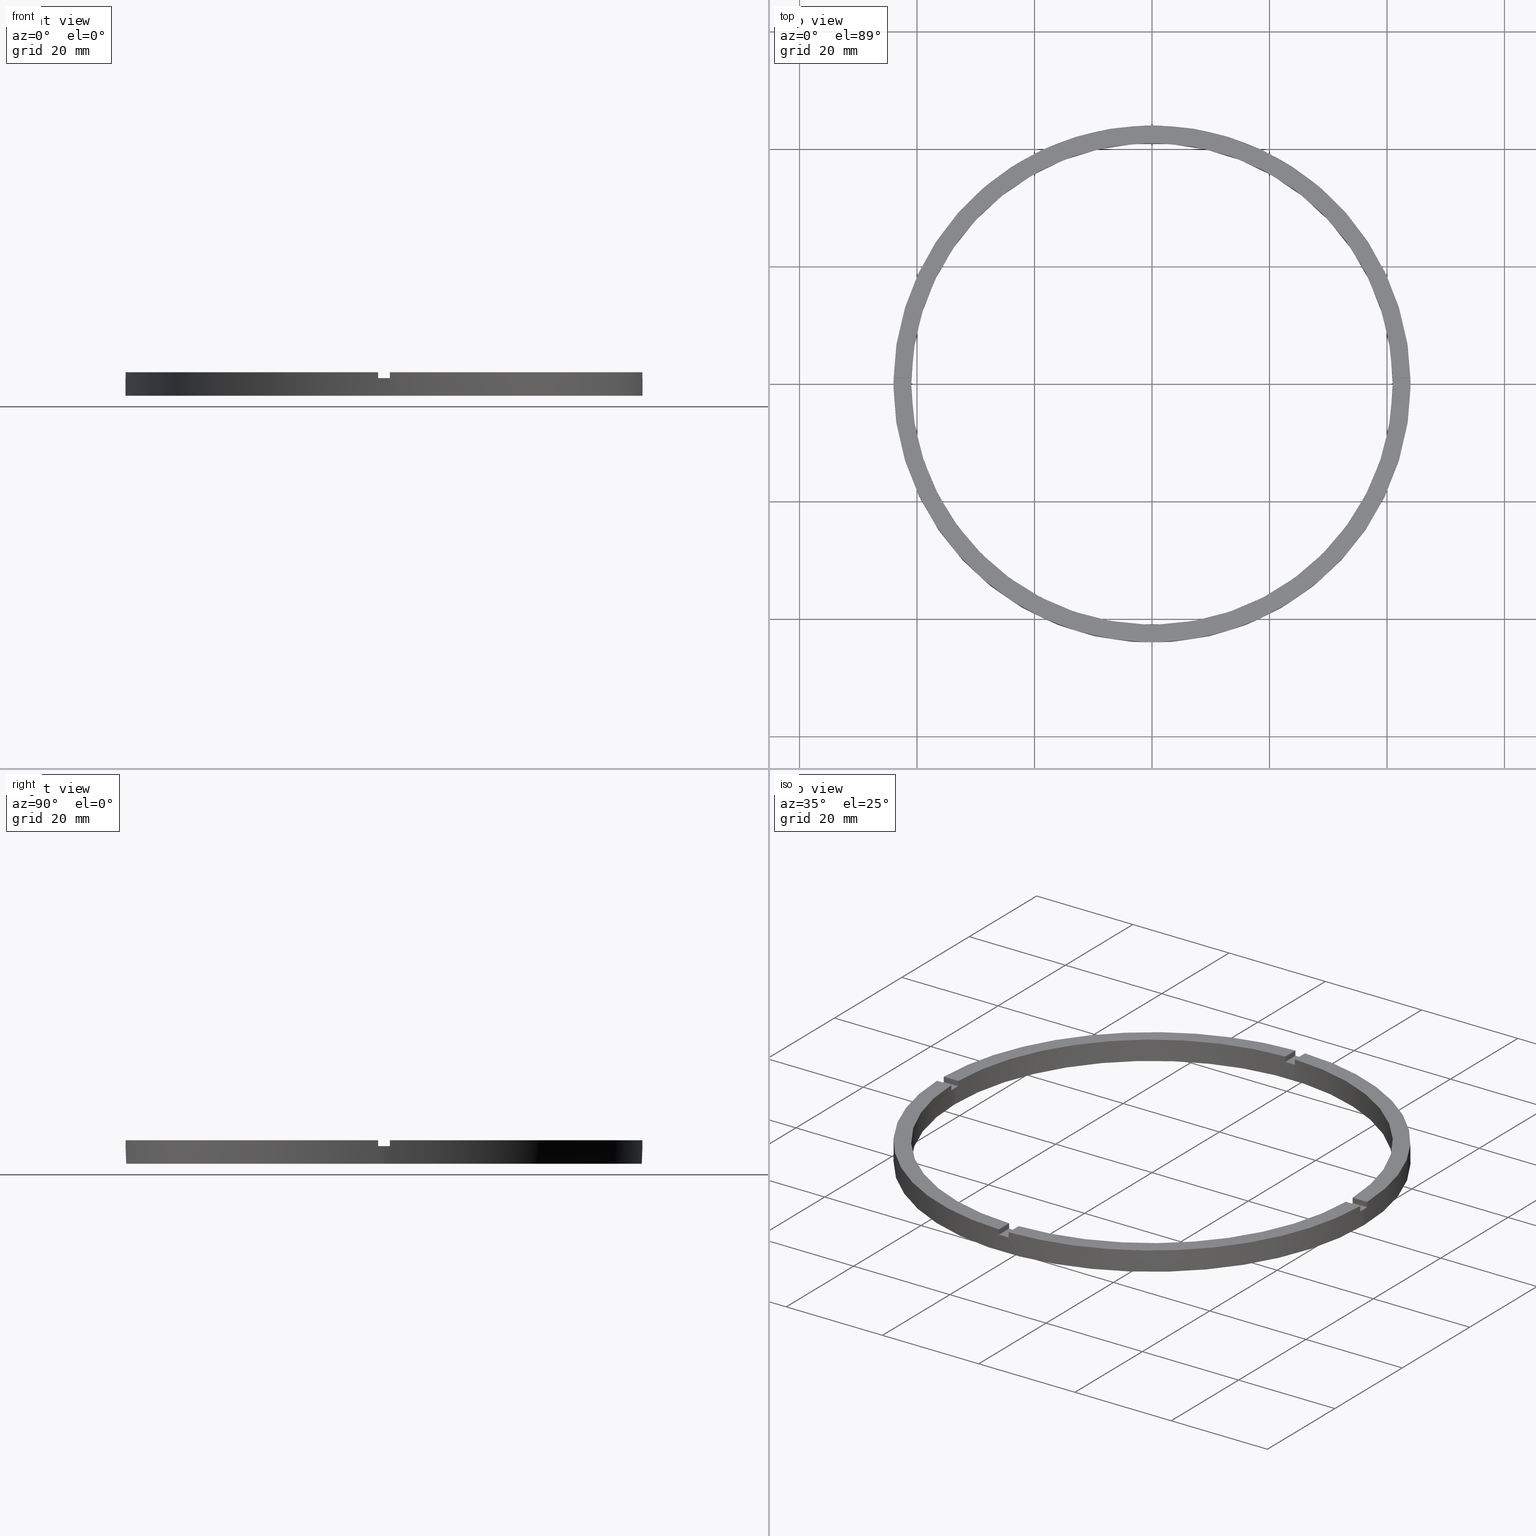
[diagram: canonical four-view strip — front | top / right | iso, engineering-drawing reading convention]
A machine part, canonical four-view strip (front | top / right | iso — engineering-drawing reading convention). The complete STEP part file that produces these views, byte-faithful:
ISO-10303-21;
HEADER;
FILE_DESCRIPTION (( 'STEP AP203' ),
    '1' );
FILE_NAME ('514181.step',
    '2024-12-26T02:45:28',
    ( 'MSI' ),
    ( '' ),
    'SwSTEP 2.0',
    'SolidWorks 2020',
    '' );
FILE_SCHEMA (( 'CONFIG_CONTROL_DESIGN' ));
ENDSEC;

DATA;
#1 = VERTEX_POINT ( 'NONE', #317 ) ;
#2 = ORIENTED_EDGE ( 'NONE', *, *, #251, .F. ) ;
#3 = ORIENTED_EDGE ( 'NONE', *, *, #658, .F. ) ;
#4 = ORIENTED_EDGE ( 'NONE', *, *, #277, .F. ) ;
#5 = ORIENTED_EDGE ( 'NONE', *, *, #682, .F. ) ;
#6 = ORIENTED_EDGE ( 'NONE', *, *, #703, .F. ) ;
#7 = VERTEX_POINT ( 'NONE', #632 ) ;
#8 = AXIS2_PLACEMENT_3D ( 'NONE', #494, #319, #689 ) ;
#9 = EDGE_CURVE ( 'NONE', #700, #595, #743, .T. ) ;
#10 = ORIENTED_EDGE ( 'NONE', *, *, #99, .F. ) ;
#11 = ADVANCED_FACE ( 'NONE', ( #219 ), #382, .F. ) ;
#12 = ORIENTED_EDGE ( 'NONE', *, *, #453, .T. ) ;
#13 = FACE_OUTER_BOUND ( 'NONE', #472, .T. ) ;
#14 = ORIENTED_EDGE ( 'NONE', *, *, #159, .F. ) ;
#15 = VERTEX_POINT ( 'NONE', #349 ) ;
#16 = VERTEX_POINT ( 'NONE', #74 ) ;
#17 = CIRCLE ( 'NONE', #165, 44.00000000000000000 ) ;
#18 = ORIENTED_EDGE ( 'NONE', *, *, #30, .T. ) ;
#19 = AXIS2_PLACEMENT_3D ( 'NONE', #225, #294, #704 ) ;
#20 = LINE ( 'NONE', #656, #583 ) ;
#21 = FACE_OUTER_BOUND ( 'NONE', #457, .T. ) ;
#22 = PLANE ( 'NONE',  #391 ) ;
#23 = LINE ( 'NONE', #314, #25 ) ;
#24 = ORIENTED_EDGE ( 'NONE', *, *, #132, .F. ) ;
#25 = VECTOR ( 'NONE', #423, 1000.000000000000000 ) ;
#26 = FACE_OUTER_BOUND ( 'NONE', #206, .T. ) ;
#27 = ORIENTED_EDGE ( 'NONE', *, *, #517, .F. ) ;
#28 = CIRCLE ( 'NONE', #441, 44.00000000000000000 ) ;
#29 = VECTOR ( 'NONE', #464, 1000.000000000000000 ) ;
#30 = EDGE_CURVE ( 'NONE', #595, #267, #221, .T. ) ;
#31 = VECTOR ( 'NONE', #140, 1000.000000000000000 ) ;
#32 = CARTESIAN_POINT ( 'NONE',  ( 43.98863489584553577, -1.000000000000156319, 4.000000000000000000 ) ) ;
#33 = VECTOR ( 'NONE', #352, 1000.000000000000000 ) ;
#34 = LINE ( 'NONE', #368, #576 ) ;
#35 = AXIS2_PLACEMENT_3D ( 'NONE', #170, #696, #534 ) ;
#36 = DIRECTION ( 'NONE',  ( 0.000000000000000000, 0.000000000000000000, 1.000000000000000000 ) ) ;
#37 = DIRECTION ( 'NONE',  ( 1.000000000000000000, 1.951563910473907735E-16, -0.000000000000000000 ) ) ;
#38 = CIRCLE ( 'NONE', #85, 41.00000000000000000 ) ;
#39 = EDGE_LOOP ( 'NONE', ( #244, #499, #535, #256, #51, #198 ) ) ;
#40 = ORIENTED_EDGE ( 'NONE', *, *, #130, .T. ) ;
#41 = VERTEX_POINT ( 'NONE', #375 ) ;
#42 = LINE ( 'NONE', #746, #45 ) ;
#43 = VERTEX_POINT ( 'NONE', #612 ) ;
#44 = CIRCLE ( 'NONE', #19, 41.00000000000000000 ) ;
#45 = VECTOR ( 'NONE', #283, 1000.000000000000000 ) ;
#46 = ORIENTED_EDGE ( 'NONE', *, *, #697, .T. ) ;
#47 = DIRECTION ( 'NONE',  ( -1.000000000000000000, -6.505213034913025371E-17, 0.000000000000000000 ) ) ;
#48 = EDGE_LOOP ( 'NONE', ( #729, #555, #347, #286, #550, #602 ) ) ;
#49 = FACE_OUTER_BOUND ( 'NONE', #209, .T. ) ;
#50 = DIRECTION ( 'NONE',  ( 1.000000000000000000, 0.000000000000000000, 0.000000000000000000 ) ) ;
#51 = ORIENTED_EDGE ( 'NONE', *, *, #437, .F. ) ;
#52 = VERTEX_POINT ( 'NONE', #169 ) ;
#53 = EDGE_CURVE ( 'NONE', #266, #757, #217, .T. ) ;
#54 = CIRCLE ( 'NONE', #186, 44.00000000000000000 ) ;
#55 = FACE_OUTER_BOUND ( 'NONE', #278, .T. ) ;
#56 = EDGE_CURVE ( 'NONE', #700, #518, #739, .T. ) ;
#57 = CARTESIAN_POINT ( 'NONE',  ( 44.00000000000000000, 5.388445916248353619E-15, 0.000000000000000000 ) ) ;
#58 = VECTOR ( 'NONE', #260, 1000.000000000000000 ) ;
#59 = DIRECTION ( 'NONE',  ( 0.000000000000000000, 0.000000000000000000, 1.000000000000000000 ) ) ;
#60 = CARTESIAN_POINT ( 'NONE',  ( 41.00000000000000000, 5.021051876504148963E-15, 4.000000000000000000 ) ) ;
#61 = CARTESIAN_POINT ( 'NONE',  ( 40.98780306383839189, -1.000000000000156541, 4.000000000000000000 ) ) ;
#62 = CIRCLE ( 'NONE', #318, 44.00000000000000000 ) ;
#63 = CIRCLE ( 'NONE', #227, 44.00000000000000000 ) ;
#64 = LINE ( 'NONE', #627, #340 ) ;
#65 = ORIENTED_EDGE ( 'NONE', *, *, #351, .T. ) ;
#66 = EDGE_LOOP ( 'NONE', ( #734, #76, #470, #10 ) ) ;
#67 = VECTOR ( 'NONE', #134, 1000.000000000000000 ) ;
#68 = DIRECTION ( 'NONE',  ( 0.000000000000000000, 0.000000000000000000, 1.000000000000000000 ) ) ;
#69 = EDGE_LOOP ( 'NONE', ( #515, #245, #224, #265, #742, #254, #755, #485, #276, #18, #540, #288 ) ) ;
#70 = FACE_OUTER_BOUND ( 'NONE', #270, .T. ) ;
#71 = DIRECTION ( 'NONE',  ( 0.000000000000000000, 0.000000000000000000, 1.000000000000000000 ) ) ;
#72 = CARTESIAN_POINT ( 'NONE',  ( 0.000000000000000000, 0.000000000000000000, 4.000000000000000000 ) ) ;
#73 = LINE ( 'NONE', #60, #320 ) ;
#74 = CARTESIAN_POINT ( 'NONE',  ( 40.98780306383840610, 0.9999999999998434586, 4.000000000000000000 ) ) ;
#75 = AXIS2_PLACEMENT_3D ( 'NONE', #89, #81, #546 ) ;
#76 = ORIENTED_EDGE ( 'NONE', *, *, #344, .T. ) ;
#77 = CIRCLE ( 'NONE', #465, 44.00000000000000000 ) ;
#78 = DIRECTION ( 'NONE',  ( 1.000000000000000000, 0.000000000000000000, 0.000000000000000000 ) ) ;
#79 = CARTESIAN_POINT ( 'NONE',  ( 0.000000000000000000, 0.000000000000000000, 4.000000000000000000 ) ) ;
#80 = CIRCLE ( 'NONE', #643, 41.00000000000000000 ) ;
#81 = DIRECTION ( 'NONE',  ( -1.000000000000000000, -1.301042606982605074E-16, 0.000000000000000000 ) ) ;
#82 = DIRECTION ( 'NONE',  ( 1.000000000000000000, 0.000000000000000000, 0.000000000000000000 ) ) ;
#83 = CYLINDRICAL_SURFACE ( 'NONE', #691, 44.00000000000000000 ) ;
#84 = CIRCLE ( 'NONE', #416, 41.00000000000000000 ) ;
#85 = AXIS2_PLACEMENT_3D ( 'NONE', #363, #679, #82 ) ;
#86 = DIRECTION ( 'NONE',  ( 1.000000000000000000, 0.000000000000000000, 0.000000000000000000 ) ) ;
#87 = DIRECTION ( 'NONE',  ( 1.000000000000000000, -0.000000000000000000, 0.000000000000000000 ) ) ;
#88 = FACE_OUTER_BOUND ( 'NONE', #768, .T. ) ;
#89 = CARTESIAN_POINT ( 'NONE',  ( -1.000000000000159650, -34.00000000000017764, 3.000000000000000000 ) ) ;
#90 = CARTESIAN_POINT ( 'NONE',  ( 43.98863489584554287, 0.9999999999998436806, 3.000000000000000000 ) ) ;
#91 = EDGE_CURVE ( 'NONE', #445, #757, #282, .T. ) ;
#92 = LINE ( 'NONE', #463, #322 ) ;
#93 = ORIENTED_EDGE ( 'NONE', *, *, #9, .F. ) ;
#94 = ORIENTED_EDGE ( 'NONE', *, *, #548, .T. ) ;
#95 = CARTESIAN_POINT ( 'NONE',  ( -1.000000000000158540, -40.98780306383839189, 4.000000000000000000 ) ) ;
#96 = ADVANCED_FACE ( 'NONE', ( #26, #579 ), #458, .F. ) ;
#97 = ORIENTED_EDGE ( 'NONE', *, *, #498, .F. ) ;
#98 = ORIENTED_EDGE ( 'NONE', *, *, #741, .F. ) ;
#99 = EDGE_CURVE ( 'NONE', #240, #513, #313, .T. ) ;
#100 = DIRECTION ( 'NONE',  ( 1.000000000000000000, 0.000000000000000000, -0.000000000000000000 ) ) ;
#101 = PERSON_AND_ORGANIZATION ( #663, #118 ) ;
#102 = VECTOR ( 'NONE', #634, 1000.000000000000000 ) ;
#103 = FACE_OUTER_BOUND ( 'NONE', #48, .T. ) ;
#104 = CC_DESIGN_PERSON_AND_ORGANIZATION_ASSIGNMENT ( #401, #188, ( #462 ) ) ;
#105 = EDGE_CURVE ( 'NONE', #1, #731, #20, .T. ) ;
#106 = CIRCLE ( 'NONE', #332, 44.00000000000000000 ) ;
#107 = VECTOR ( 'NONE', #705, 1000.000000000000000 ) ;
#108 = EDGE_CURVE ( 'NONE', #43, #271, #17, .T. ) ;
#109 = CIRCLE ( 'NONE', #163, 44.00000000000000000 ) ;
#110 = FACE_OUTER_BOUND ( 'NONE', #558, .T. ) ;
#111 = LINE ( 'NONE', #380, #619 ) ;
#112 = UNCERTAINTY_MEASURE_WITH_UNIT (LENGTH_MEASURE( 1.000000000000000082E-05 ), #758, 'distance_accuracy_value', 'NONE');
#113 = CARTESIAN_POINT ( 'NONE',  ( 33.99999999999998579, -1.000000000000156986, 3.000000000000000000 ) ) ;
#114 = LINE ( 'NONE', #655, #107 ) ;
#115 = AXIS2_PLACEMENT_3D ( 'NONE', #560, #695, #364 ) ;
#116 = LOCAL_TIME ( 10, 45, 28.00000000000000000, #370 ) ;
#117 = APPROVAL_DATE_TIME ( #383, #122 ) ;
#118 = ORGANIZATION ( 'δָ��', 'δָ��', '' ) ;
#119 = DIRECTION ( 'NONE',  ( 0.000000000000000000, 0.000000000000000000, 1.000000000000000000 ) ) ;
#120 = LINE ( 'NONE', #711, #639 ) ;
#121 = DIRECTION ( 'NONE',  ( 0.000000000000000000, 0.000000000000000000, 1.000000000000000000 ) ) ;
#122 = APPROVAL ( #421, 'δָ��' ) ;
#123 = EDGE_CURVE ( 'NONE', #343, #269, #305, .T. ) ;
#124 = LINE ( 'NONE', #231, #633 ) ;
#125 = DIRECTION ( 'NONE',  ( -0.000000000000000000, -0.000000000000000000, -1.000000000000000000 ) ) ;
#126 = CARTESIAN_POINT ( 'NONE',  ( -1.000000000000159650, -34.00000000000017764, 4.000000000000000000 ) ) ;
#127 = LOCAL_TIME ( 10, 45, 28.00000000000000000, #129 ) ;
#128 = DIRECTION ( 'NONE',  ( -1.000000000000000000, -6.505213034913025371E-17, -0.000000000000000000 ) ) ;
#129 = COORDINATED_UNIVERSAL_TIME_OFFSET ( 8, 0, .AHEAD. ) ;
#130 = EDGE_CURVE ( 'NONE', #519, #1, #42, .T. ) ;
#131 = CALENDAR_DATE ( 2024, 26, 12 ) ;
#132 = EDGE_CURVE ( 'NONE', #191, #539, #301, .T. ) ;
#133 = PERSON_AND_ORGANIZATION ( #663, #118 ) ;
#134 = DIRECTION ( 'NONE',  ( -1.000000000000000000, -6.505213034913025371E-17, -0.000000000000000000 ) ) ;
#135 = APPLICATION_CONTEXT ( 'configuration controlled 3d designs of mechanical parts and assemblies' ) ;
#136 = EDGE_CURVE ( 'NONE', #271, #537, #62, .T. ) ;
#137 = EDGE_CURVE ( 'NONE', #199, #255, #566, .T. ) ;
#138 = CARTESIAN_POINT ( 'NONE',  ( 0.000000000000000000, 0.000000000000000000, 0.000000000000000000 ) ) ;
#139 = PLANE ( 'NONE',  #373 ) ;
#140 = DIRECTION ( 'NONE',  ( -0.000000000000000000, -1.000000000000000000, -0.000000000000000000 ) ) ;
#141 = AXIS2_PLACEMENT_3D ( 'NONE', #216, #533, #671 ) ;
#142 = DATE_AND_TIME ( #675, #154 ) ;
#143 = COORDINATED_UNIVERSAL_TIME_OFFSET ( 8, 0, .AHEAD. ) ;
#144 = AXIS2_PLACEMENT_3D ( 'NONE', #669, #222, #538 ) ;
#145 = CALENDAR_DATE ( 2024, 26, 12 ) ;
#146 = DIRECTION ( 'NONE',  ( -1.951563910473907735E-16, 1.000000000000000000, 0.000000000000000000 ) ) ;
#147 = FACE_OUTER_BOUND ( 'NONE', #39, .T. ) ;
#148 = CARTESIAN_POINT ( 'NONE',  ( 43.98863489584554287, 0.9999999999998436806, 4.000000000000000000 ) ) ;
#149 = LINE ( 'NONE', #750, #166 ) ;
#150 = DATE_AND_TIME ( #145, #127 ) ;
#151 = COORDINATED_UNIVERSAL_TIME_OFFSET ( 8, 0, .AHEAD. ) ;
#152 = CARTESIAN_POINT ( 'NONE',  ( 0.000000000000000000, 0.000000000000000000, 4.000000000000000000 ) ) ;
#153 = EDGE_CURVE ( 'NONE', #240, #269, #549, .T. ) ;
#154 = LOCAL_TIME ( 10, 45, 28.00000000000000000, #406 ) ;
#155 = CARTESIAN_POINT ( 'NONE',  ( -34.00000000000018474, 0.9999999999999724665, 3.000000000000000000 ) ) ;
#156 = ADVANCED_FACE ( 'NONE', ( #21 ), #22, .F. ) ;
#157 = DIRECTION ( 'NONE',  ( 1.000000000000000000, 0.000000000000000000, 0.000000000000000000 ) ) ;
#158 = AXIS2_PLACEMENT_3D ( 'NONE', #719, #600, #212 ) ;
#159 = EDGE_CURVE ( 'NONE', #532, #43, #575, .T. ) ;
#160 = CARTESIAN_POINT ( 'NONE',  ( 0.000000000000000000, 0.000000000000000000, 3.000000000000000000 ) ) ;
#161 = DIRECTION ( 'NONE',  ( -0.000000000000000000, -0.000000000000000000, -1.000000000000000000 ) ) ;
#162 = DIRECTION ( 'NONE',  ( 0.000000000000000000, 0.000000000000000000, 1.000000000000000000 ) ) ;
#163 = AXIS2_PLACEMENT_3D ( 'NONE', #167, #678, #50 ) ;
#164 = CARTESIAN_POINT ( 'NONE',  ( 44.00000000000000000, 5.388445916248353619E-15, 3.000000000000000000 ) ) ;
#165 = AXIS2_PLACEMENT_3D ( 'NONE', #230, #617, #215 ) ;
#166 = VECTOR ( 'NONE', #128, 1000.000000000000000 ) ;
#167 = CARTESIAN_POINT ( 'NONE',  ( 0.000000000000000000, 0.000000000000000000, 4.000000000000000000 ) ) ;
#168 = CARTESIAN_POINT ( 'NONE',  ( 0.000000000000000000, 0.000000000000000000, 3.000000000000000000 ) ) ;
#169 = CARTESIAN_POINT ( 'NONE',  ( -40.98780306383839900, 0.9999999999999711342, 3.000000000000000000 ) ) ;
#170 = CARTESIAN_POINT ( 'NONE',  ( 0.000000000000000000, 0.000000000000000000, 4.000000000000000000 ) ) ;
#171 = DIRECTION ( 'NONE',  ( -0.000000000000000000, 0.000000000000000000, 1.000000000000000000 ) ) ;
#172 = EDGE_CURVE ( 'NONE', #16, #243, #554, .T. ) ;
#173 = DIRECTION ( 'NONE',  ( 0.000000000000000000, 0.000000000000000000, 1.000000000000000000 ) ) ;
#174 = DIRECTION ( 'NONE',  ( 1.301042606982605074E-16, -1.000000000000000000, 0.000000000000000000 ) ) ;
#175 = CARTESIAN_POINT ( 'NONE',  ( 0.9999999999998404610, -34.00000000000017764, 3.000000000000000000 ) ) ;
#176 = APPLICATION_PROTOCOL_DEFINITION ( 'international standard', 'config_control_design', 1994, #135 ) ;
#177 = DIRECTION ( 'NONE',  ( -0.000000000000000000, -0.000000000000000000, -1.000000000000000000 ) ) ;
#178 = CC_DESIGN_PERSON_AND_ORGANIZATION_ASSIGNMENT ( #101, #732, ( #232 ) ) ;
#179 = EDGE_CURVE ( 'NONE', #773, #708, #581, .T. ) ;
#180 = EDGE_CURVE ( 'NONE', #573, #325, #63, .T. ) ;
#181 = DIRECTION ( 'NONE',  ( -1.000000000000000000, 0.000000000000000000, 0.000000000000000000 ) ) ;
#182 = CARTESIAN_POINT ( 'NONE',  ( 0.9999999999999740208, 33.99999999999999289, 3.000000000000000000 ) ) ;
#183 = CARTESIAN_POINT ( 'NONE',  ( -43.98863489584553577, -1.000000000000029532, 3.000000000000000000 ) ) ;
#184 = ORIENTED_EDGE ( 'NONE', *, *, #392, .T. ) ;
#185 = EDGE_LOOP ( 'NONE', ( #238, #252, #728, #475 ) ) ;
#186 = AXIS2_PLACEMENT_3D ( 'NONE', #525, #171, #615 ) ;
#187 = CARTESIAN_POINT ( 'NONE',  ( 0.000000000000000000, 0.000000000000000000, 4.000000000000000000 ) ) ;
#188 = PERSON_AND_ORGANIZATION_ROLE ( 'design_supplier' ) ;
#189 = ORIENTED_EDGE ( 'NONE', *, *, #91, .F. ) ;
#190 = AXIS2_PLACEMENT_3D ( 'NONE', #514, #598, #698 ) ;
#191 = VERTEX_POINT ( 'NONE', #589 ) ;
#192 = ORIENTED_EDGE ( 'NONE', *, *, #137, .T. ) ;
#193 = EDGE_CURVE ( 'NONE', #532, #708, #568, .T. ) ;
#194 = ORIENTED_EDGE ( 'NONE', *, *, #489, .F. ) ;
#195 = ORIENTED_EDGE ( 'NONE', *, *, #703, .T. ) ;
#196 = ORIENTED_EDGE ( 'NONE', *, *, #735, .T. ) ;
#197 = DIRECTION ( 'NONE',  ( -1.000000000000000000, -1.951563910473907735E-16, 0.000000000000000000 ) ) ;
#198 = ORIENTED_EDGE ( 'NONE', *, *, #661, .T. ) ;
#199 = VERTEX_POINT ( 'NONE', #310 ) ;
#200 = EDGE_LOOP ( 'NONE', ( #531, #724, #511, #2, #40, #528, #268, #189, #504, #194, #605, #207 ) ) ;
#201 = ORIENTED_EDGE ( 'NONE', *, *, #517, .T. ) ;
#202 = CARTESIAN_POINT ( 'NONE',  ( -34.00000000000018474, 0.9999999999999724665, 3.000000000000000000 ) ) ;
#203 = ORIENTED_EDGE ( 'NONE', *, *, #251, .T. ) ;
#204 = DIRECTION ( 'NONE',  ( 1.000000000000000000, 0.000000000000000000, 0.000000000000000000 ) ) ;
#205 = DIRECTION ( 'NONE',  ( -1.000000000000000000, 0.000000000000000000, 0.000000000000000000 ) ) ;
#206 = EDGE_LOOP ( 'NONE', ( #527, #449 ) ) ;
#207 = ORIENTED_EDGE ( 'NONE', *, *, #425, .T. ) ;
#208 = DIRECTION ( 'NONE',  ( 1.000000000000000000, 0.000000000000000000, 0.000000000000000000 ) ) ;
#209 = EDGE_LOOP ( 'NONE', ( #46, #195, #452, #776 ) ) ;
#210 = APPROVAL ( #737, 'δָ��' ) ;
#211 = ORIENTED_EDGE ( 'NONE', *, *, #247, .F. ) ;
#212 = DIRECTION ( 'NONE',  ( 1.000000000000000000, 0.000000000000000000, -0.000000000000000000 ) ) ;
#213 = CARTESIAN_POINT ( 'NONE',  ( 0.000000000000000000, 0.000000000000000000, 4.000000000000000000 ) ) ;
#214 = EDGE_CURVE ( 'NONE', #7, #191, #73, .T. ) ;
#215 = DIRECTION ( 'NONE',  ( 1.000000000000000000, 0.000000000000000000, 0.000000000000000000 ) ) ;
#216 = CARTESIAN_POINT ( 'NONE',  ( 0.000000000000000000, 0.000000000000000000, 3.000000000000000000 ) ) ;
#217 = LINE ( 'NONE', #126, #483 ) ;
#218 = CARTESIAN_POINT ( 'NONE',  ( -1.000000000000158318, -43.98863489584553577, 4.000000000000000000 ) ) ;
#219 = FACE_OUTER_BOUND ( 'NONE', #780, .T. ) ;
#220 = DIRECTION ( 'NONE',  ( -0.000000000000000000, -0.000000000000000000, -1.000000000000000000 ) ) ;
#221 = LINE ( 'NONE', #300, #226 ) ;
#222 = DIRECTION ( 'NONE',  ( 0.000000000000000000, -0.000000000000000000, 1.000000000000000000 ) ) ;
#223 = CC_DESIGN_SECURITY_CLASSIFICATION ( #640, ( #462 ) ) ;
#224 = ORIENTED_EDGE ( 'NONE', *, *, #180, .T. ) ;
#225 = CARTESIAN_POINT ( 'NONE',  ( 0.000000000000000000, 0.000000000000000000, 0.000000000000000000 ) ) ;
#226 = VECTOR ( 'NONE', #415, 1000.000000000000000 ) ;
#227 = AXIS2_PLACEMENT_3D ( 'NONE', #138, #36, #454 ) ;
#228 = CARTESIAN_POINT ( 'NONE',  ( -43.98863489584553577, -1.000000000000029532, 4.000000000000000000 ) ) ;
#229 = CARTESIAN_POINT ( 'NONE',  ( -1.000000000000025979, 40.98780306383839900, 3.000000000000000000 ) ) ;
#230 = CARTESIAN_POINT ( 'NONE',  ( 0.000000000000000000, 0.000000000000000000, 3.000000000000000000 ) ) ;
#231 = CARTESIAN_POINT ( 'NONE',  ( -40.98780306383839900, 0.9999999999999711342, 4.000000000000000000 ) ) ;
#232 = PRODUCT_DEFINITION ( 'δ֪', '', #462, #390 ) ;
#233 = DIRECTION ( 'NONE',  ( 1.000000000000000000, 0.000000000000000000, 0.000000000000000000 ) ) ;
#234 = ADVANCED_FACE ( 'NONE', ( #596 ), #83, .T. ) ;
#235 = DIRECTION ( 'NONE',  ( 1.000000000000000000, 6.505213034913025371E-17, 0.000000000000000000 ) ) ;
#236 = CARTESIAN_POINT ( 'NONE',  ( -40.98780306383839900, 0.9999999999999711342, 4.000000000000000000 ) ) ;
#237 = DATE_TIME_ROLE ( 'creation_date' ) ;
#238 = ORIENTED_EDGE ( 'NONE', *, *, #548, .F. ) ;
#239 = DIRECTION ( 'NONE',  ( 1.000000000000000000, 0.000000000000000000, 0.000000000000000000 ) ) ;
#240 = VERTEX_POINT ( 'NONE', #654 ) ;
#241 = ADVANCED_FACE ( 'NONE', ( #587 ), #477, .T. ) ;
#242 = ORIENTED_EDGE ( 'NONE', *, *, #592, .F. ) ;
#243 = VERTEX_POINT ( 'NONE', #524 ) ;
#244 = ORIENTED_EDGE ( 'NONE', *, *, #692, .T. ) ;
#245 = ORIENTED_EDGE ( 'NONE', *, *, #396, .T. ) ;
#246 = DIRECTION ( 'NONE',  ( 0.000000000000000000, 0.000000000000000000, 1.000000000000000000 ) ) ;
#247 = EDGE_CURVE ( 'NONE', #500, #757, #64, .T. ) ;
#248 = ORIENTED_EDGE ( 'NONE', *, *, #658, .T. ) ;
#249 = DIRECTION ( 'NONE',  ( -1.000000000000000000, 0.000000000000000000, 0.000000000000000000 ) ) ;
#250 = ORIENTED_EDGE ( 'NONE', *, *, #179, .T. ) ;
#251 = EDGE_CURVE ( 'NONE', #519, #591, #77, .T. ) ;
#252 = ORIENTED_EDGE ( 'NONE', *, *, #172, .F. ) ;
#253 = ADVANCED_FACE ( 'NONE', ( #597 ), #516, .F. ) ;
#254 = ORIENTED_EDGE ( 'NONE', *, *, #123, .T. ) ;
#255 = VERTEX_POINT ( 'NONE', #236 ) ;
#256 = ORIENTED_EDGE ( 'NONE', *, *, #714, .F. ) ;
#257 = ORIENTED_EDGE ( 'NONE', *, *, #697, .F. ) ;
#258 = AXIS2_PLACEMENT_3D ( 'NONE', #334, #205, #404 ) ;
#259 = ORIENTED_EDGE ( 'NONE', *, *, #673, .F. ) ;
#260 = DIRECTION ( 'NONE',  ( 1.000000000000000000, 6.505213034913025371E-17, 0.000000000000000000 ) ) ;
#261 = ORIENTED_EDGE ( 'NONE', *, *, #505, .T. ) ;
#262 = AXIS2_PLACEMENT_3D ( 'NONE', #721, #622, #235 ) ;
#263 = ORIENTED_EDGE ( 'NONE', *, *, #344, .F. ) ;
#264 = ORIENTED_EDGE ( 'NONE', *, *, #153, .T. ) ;
#265 = ORIENTED_EDGE ( 'NONE', *, *, #408, .F. ) ;
#266 = VERTEX_POINT ( 'NONE', #95 ) ;
#267 = VERTEX_POINT ( 'NONE', #400 ) ;
#268 = ORIENTED_EDGE ( 'NONE', *, *, #247, .T. ) ;
#269 = VERTEX_POINT ( 'NONE', #752 ) ;
#270 = EDGE_LOOP ( 'NONE', ( #14, #727, #545, #609 ) ) ;
#271 = VERTEX_POINT ( 'NONE', #164 ) ;
#272 = PLANE ( 'NONE',  #476 ) ;
#273 = ORIENTED_EDGE ( 'NONE', *, *, #172, .T. ) ;
#274 = ORIENTED_EDGE ( 'NONE', *, *, #56, .T. ) ;
#275 = AXIS2_PLACEMENT_3D ( 'NONE', #769, #715, #311 ) ;
#276 = ORIENTED_EDGE ( 'NONE', *, *, #467, .F. ) ;
#277 = EDGE_CURVE ( 'NONE', #442, #266, #84, .T. ) ;
#278 = EDGE_LOOP ( 'NONE', ( #259, #346, #257, #203 ) ) ;
#279 = ORIENTED_EDGE ( 'NONE', *, *, #30, .F. ) ;
#280 = CARTESIAN_POINT ( 'NONE',  ( 0.9999999999998414602, -40.98780306383840610, 4.000000000000000000 ) ) ;
#281 = LINE ( 'NONE', #420, #564 ) ;
#282 = CIRCLE ( 'NONE', #607, 44.00000000000000000 ) ;
#283 = DIRECTION ( 'NONE',  ( -0.000000000000000000, -0.000000000000000000, -1.000000000000000000 ) ) ;
#284 = LINE ( 'NONE', #414, #295 ) ;
#285 = VECTOR ( 'NONE', #766, 1000.000000000000000 ) ;
#286 = ORIENTED_EDGE ( 'NONE', *, *, #505, .F. ) ;
#287 = CARTESIAN_POINT ( 'NONE',  ( -1.000000000000158318, -43.98863489584553577, 3.000000000000000000 ) ) ;
#288 = ORIENTED_EDGE ( 'NONE', *, *, #430, .T. ) ;
#289 = CARTESIAN_POINT ( 'NONE',  ( 0.000000000000000000, 0.000000000000000000, 3.000000000000000000 ) ) ;
#290 = CARTESIAN_POINT ( 'NONE',  ( 33.99999999999998579, 0.9999999999998430145, 3.000000000000000000 ) ) ;
#291 = ORIENTED_EDGE ( 'NONE', *, *, #584, .T. ) ;
#292 = LINE ( 'NONE', #740, #33 ) ;
#293 = DIRECTION ( 'NONE',  ( 1.000000000000000000, 1.951563910473907735E-16, 0.000000000000000000 ) ) ;
#294 = DIRECTION ( 'NONE',  ( 0.000000000000000000, 0.000000000000000000, 1.000000000000000000 ) ) ;
#295 = VECTOR ( 'NONE', #623, 1000.000000000000000 ) ;
#296 = DIRECTION ( 'NONE',  ( 0.000000000000000000, 0.000000000000000000, 1.000000000000000000 ) ) ;
#297 = ADVANCED_FACE ( 'NONE', ( #88 ), #428, .F. ) ;
#298 = CARTESIAN_POINT ( 'NONE',  ( -43.98863489584554287, 0.9999999999999705791, 3.000000000000000000 ) ) ;
#299 = DIRECTION ( 'NONE',  ( 1.000000000000000000, 0.000000000000000000, -0.000000000000000000 ) ) ;
#300 = CARTESIAN_POINT ( 'NONE',  ( 0.9999999999999740208, 43.98863489584554287, 4.000000000000000000 ) ) ;
#301 = CIRCLE ( 'NONE', #647, 41.00000000000000000 ) ;
#302 = CC_DESIGN_DATE_AND_TIME_ASSIGNMENT ( #649, #435, ( #640 ) ) ;
#303 = CARTESIAN_POINT ( 'NONE',  ( -40.98780306383839900, -1.000000000000028866, 4.000000000000000000 ) ) ;
#304 = ORIENTED_EDGE ( 'NONE', *, *, #629, .T. ) ;
#305 = LINE ( 'NONE', #590, #29 ) ;
#306 = CARTESIAN_POINT ( 'NONE',  ( 0.9999999999999740208, 40.98780306383839900, 3.000000000000000000 ) ) ;
#307 = VECTOR ( 'NONE', #330, 1000.000000000000000 ) ;
#308 = VECTOR ( 'NONE', #642, 1000.000000000000000 ) ;
#309 = VECTOR ( 'NONE', #456, 1000.000000000000000 ) ;
#310 = CARTESIAN_POINT ( 'NONE',  ( -1.000000000000025979, 40.98780306383839900, 4.000000000000000000 ) ) ;
#311 = DIRECTION ( 'NONE',  ( 1.000000000000000000, 0.000000000000000000, 0.000000000000000000 ) ) ;
#312 = CARTESIAN_POINT ( 'NONE',  ( 40.98780306383840610, 0.9999999999998434586, 3.000000000000000000 ) ) ;
#313 = LINE ( 'NONE', #506, #285 ) ;
#314 = CARTESIAN_POINT ( 'NONE',  ( 0.9999999999999740208, 40.98780306383839900, 4.000000000000000000 ) ) ;
#315 = AXIS2_PLACEMENT_3D ( 'NONE', #394, #686, #436 ) ;
#316 = LINE ( 'NONE', #148, #307 ) ;
#317 = CARTESIAN_POINT ( 'NONE',  ( 0.9999999999998416822, -43.98863489584554287, 3.000000000000000000 ) ) ;
#318 = AXIS2_PLACEMENT_3D ( 'NONE', #160, #603, #208 ) ;
#319 = DIRECTION ( 'NONE',  ( 0.000000000000000000, 0.000000000000000000, 1.000000000000000000 ) ) ;
#320 = VECTOR ( 'NONE', #551, 1000.000000000000000 ) ;
#321 = VERTEX_POINT ( 'NONE', #183 ) ;
#322 = VECTOR ( 'NONE', #220, 1000.000000000000000 ) ;
#323 = CARTESIAN_POINT ( 'NONE',  ( -44.00000000000000000, 0.000000000000000000, 0.000000000000000000 ) ) ;
#324 = LINE ( 'NONE', #290, #67 ) ;
#325 = VERTEX_POINT ( 'NONE', #323 ) ;
#326 = LINE ( 'NONE', #413, #309 ) ;
#327 = ADVANCED_FACE ( 'NONE', ( #70 ), #636, .F. ) ;
#328 = APPROVAL_STATUS ( 'not_yet_approved' ) ;
#329 = VECTOR ( 'NONE', #433, 1000.000000000000000 ) ;
#330 = DIRECTION ( 'NONE',  ( -0.000000000000000000, -0.000000000000000000, -1.000000000000000000 ) ) ;
#331 = ORIENTED_EDGE ( 'NONE', *, *, #277, .T. ) ;
#332 = AXIS2_PLACEMENT_3D ( 'NONE', #479, #162, #233 ) ;
#333 = VERTEX_POINT ( 'NONE', #312 ) ;
#334 = CARTESIAN_POINT ( 'NONE',  ( -1.000000000000025979, 33.99999999999999289, 3.000000000000000000 ) ) ;
#335 = APPROVAL_ROLE ( '' ) ;
#336 = LINE ( 'NONE', #480, #594 ) ;
#337 = DIRECTION ( 'NONE',  ( 0.000000000000000000, 0.000000000000000000, 1.000000000000000000 ) ) ;
#338 = EDGE_LOOP ( 'NONE', ( #543, #261, #97, #273, #27, #274, #263, #192, #98, #478, #717, #24 ) ) ;
#339 = LINE ( 'NONE', #781, #329 ) ;
#340 = VECTOR ( 'NONE', #450, 1000.000000000000000 ) ;
#341 = CIRCLE ( 'NONE', #672, 41.00000000000000000 ) ;
#342 = ORIENTED_EDGE ( 'NONE', *, *, #398, .F. ) ;
#343 = VERTEX_POINT ( 'NONE', #298 ) ;
#344 = EDGE_CURVE ( 'NONE', #199, #518, #336, .T. ) ;
#345 = ORIENTED_EDGE ( 'NONE', *, *, #430, .F. ) ;
#346 = ORIENTED_EDGE ( 'NONE', *, *, #179, .F. ) ;
#347 = ORIENTED_EDGE ( 'NONE', *, *, #398, .T. ) ;
#348 = LINE ( 'NONE', #745, #362 ) ;
#349 = CARTESIAN_POINT ( 'NONE',  ( -40.98780306383839900, -1.000000000000028866, 3.000000000000000000 ) ) ;
#350 = FACE_OUTER_BOUND ( 'NONE', #770, .T. ) ;
#351 = EDGE_CURVE ( 'NONE', #466, #731, #80, .T. ) ;
#352 = DIRECTION ( 'NONE',  ( -0.000000000000000000, -1.000000000000000000, -0.000000000000000000 ) ) ;
#353 = CARTESIAN_POINT ( 'NONE',  ( 0.000000000000000000, 0.000000000000000000, 3.000000000000000000 ) ) ;
#354 = FACE_OUTER_BOUND ( 'NONE', #66, .T. ) ;
#355 = CIRCLE ( 'NONE', #275, 41.00000000000000000 ) ;
#356 = CYLINDRICAL_SURFACE ( 'NONE', #684, 44.00000000000000000 ) ;
#357 = FACE_OUTER_BOUND ( 'NONE', #200, .T. ) ;
#358 = AXIS2_PLACEMENT_3D ( 'NONE', #175, #620, #699 ) ;
#359 = DIRECTION ( 'NONE',  ( -1.000000000000000000, 0.000000000000000000, 0.000000000000000000 ) ) ;
#360 = LINE ( 'NONE', #652, #626 ) ;
#361 = CARTESIAN_POINT ( 'NONE',  ( 0.000000000000000000, 0.000000000000000000, 0.000000000000000000 ) ) ;
#362 = VECTOR ( 'NONE', #37, 1000.000000000000000 ) ;
#363 = CARTESIAN_POINT ( 'NONE',  ( 0.000000000000000000, 0.000000000000000000, 3.000000000000000000 ) ) ;
#364 = DIRECTION ( 'NONE',  ( 1.000000000000000000, 0.000000000000000000, 0.000000000000000000 ) ) ;
#365 =( NAMED_UNIT ( * ) PLANE_ANGLE_UNIT ( ) SI_UNIT ( $, .RADIAN. ) );
#366 = PERSON_AND_ORGANIZATION ( #663, #118 ) ;
#367 = ADVANCED_BREP_SHAPE_REPRESENTATION ( '514181', ( #431, #765 ), #491 ) ;
#368 = CARTESIAN_POINT ( 'NONE',  ( 0.9999999999999740208, 33.99999999999999289, 4.000000000000000000 ) ) ;
#369 = PERSON_AND_ORGANIZATION ( #663, #118 ) ;
#370 = COORDINATED_UNIVERSAL_TIME_OFFSET ( 8, 0, .AHEAD. ) ;
#371 = PLANE ( 'NONE',  #358 ) ;
#372 = CARTESIAN_POINT ( 'NONE',  ( 0.000000000000000000, 0.000000000000000000, 4.000000000000000000 ) ) ;
#373 = AXIS2_PLACEMENT_3D ( 'NONE', #213, #385, #749 ) ;
#374 = FACE_OUTER_BOUND ( 'NONE', #473, .T. ) ;
#375 = CARTESIAN_POINT ( 'NONE',  ( -44.00000000000000000, 0.000000000000000000, 3.000000000000000000 ) ) ;
#376 = PLANE ( 'NONE',  #722 ) ;
#377 = CYLINDRICAL_SURFACE ( 'NONE', #35, 41.00000000000000000 ) ;
#378 = PLANE ( 'NONE',  #141 ) ;
#379 = LINE ( 'NONE', #593, #616 ) ;
#380 = CARTESIAN_POINT ( 'NONE',  ( -1.000000000000158540, -40.98780306383839189, 4.000000000000000000 ) ) ;
#381 = APPROVAL_PERSON_ORGANIZATION ( #369, #122, #471 ) ;
#382 = PLANE ( 'NONE',  #482 ) ;
#383 = DATE_AND_TIME ( #638, #116 ) ;
#384 = EDGE_CURVE ( 'NONE', #43, #591, #339, .T. ) ;
#385 = DIRECTION ( 'NONE',  ( 0.000000000000000000, 0.000000000000000000, 1.000000000000000000 ) ) ;
#386 = SHAPE_DEFINITION_REPRESENTATION ( #690, #367 ) ;
#387 = CARTESIAN_POINT ( 'NONE',  ( -41.00000000000000000, 0.000000000000000000, 0.000000000000000000 ) ) ;
#388 = DIRECTION ( 'NONE',  ( 0.000000000000000000, 0.000000000000000000, 1.000000000000000000 ) ) ;
#389 = CALENDAR_DATE ( 2024, 26, 12 ) ;
#390 = DESIGN_CONTEXT ( 'detailed design', #135, 'design' ) ;
#391 = AXIS2_PLACEMENT_3D ( 'NONE', #155, #146, #197 ) ;
#392 = EDGE_CURVE ( 'NONE', #532, #7, #341, .T. ) ;
#393 = PERSON_AND_ORGANIZATION ( #663, #118 ) ;
#394 = CARTESIAN_POINT ( 'NONE',  ( 0.000000000000000000, 0.000000000000000000, 3.000000000000000000 ) ) ;
#395 = ADVANCED_FACE ( 'NONE', ( #599 ), #712, .T. ) ;
#396 = EDGE_CURVE ( 'NONE', #271, #573, #92, .T. ) ;
#397 = LOCAL_TIME ( 10, 45, 28.00000000000000000, #143 ) ;
#398 = EDGE_CURVE ( 'NONE', #537, #333, #324, .T. ) ;
#399 = APPROVAL_DATE_TIME ( #150, #497 ) ;
#400 = CARTESIAN_POINT ( 'NONE',  ( 0.9999999999999740208, 43.98863489584554287, 4.000000000000000000 ) ) ;
#401 = PERSON_AND_ORGANIZATION ( #663, #118 ) ;
#402 = APPROVAL_DATE_TIME ( #650, #210 ) ;
#403 = DIRECTION ( 'NONE',  ( 0.000000000000000000, -0.000000000000000000, 1.000000000000000000 ) ) ;
#404 = DIRECTION ( 'NONE',  ( 0.000000000000000000, 0.000000000000000000, 1.000000000000000000 ) ) ;
#405 = CC_DESIGN_PERSON_AND_ORGANIZATION_ASSIGNMENT ( #670, #562, ( #462 ) ) ;
#406 = COORDINATED_UNIVERSAL_TIME_OFFSET ( 8, 0, .AHEAD. ) ;
#407 = VECTOR ( 'NONE', #410, 1000.000000000000000 ) ;
#408 = EDGE_CURVE ( 'NONE', #41, #325, #326, .T. ) ;
#409 = EDGE_CURVE ( 'NONE', #500, #1, #54, .T. ) ;
#410 = DIRECTION ( 'NONE',  ( 1.000000000000000000, 1.951563910473907735E-16, -0.000000000000000000 ) ) ;
#411 = DIRECTION ( 'NONE',  ( 0.000000000000000000, 0.000000000000000000, 1.000000000000000000 ) ) ;
#412 = AXIS2_PLACEMENT_3D ( 'NONE', #152, #733, #249 ) ;
#413 = CARTESIAN_POINT ( 'NONE',  ( -44.00000000000000000, 0.000000000000000000, 4.000000000000000000 ) ) ;
#414 = CARTESIAN_POINT ( 'NONE',  ( -1.000000000000159650, -34.00000000000017764, 3.000000000000000000 ) ) ;
#415 = DIRECTION ( 'NONE',  ( 0.000000000000000000, 0.000000000000000000, 1.000000000000000000 ) ) ;
#416 = AXIS2_PLACEMENT_3D ( 'NONE', #744, #119, #204 ) ;
#417 = AXIS2_PLACEMENT_3D ( 'NONE', #521, #121, #529 ) ;
#418 = DIRECTION ( 'NONE',  ( 1.000000000000000000, 0.000000000000000000, 0.000000000000000000 ) ) ;
#419 = CARTESIAN_POINT ( 'NONE',  ( 0.000000000000000000, 0.000000000000000000, 4.000000000000000000 ) ) ;
#420 = CARTESIAN_POINT ( 'NONE',  ( 40.98780306383840610, 0.9999999999998434586, 4.000000000000000000 ) ) ;
#421 = APPROVAL_STATUS ( 'not_yet_approved' ) ;
#422 = ADVANCED_FACE ( 'NONE', ( #574 ), #577, .F. ) ;
#423 = DIRECTION ( 'NONE',  ( 0.000000000000000000, 0.000000000000000000, 1.000000000000000000 ) ) ;
#424 = CC_DESIGN_PERSON_AND_ORGANIZATION_ASSIGNMENT ( #366, #764, ( #434 ) ) ;
#425 = EDGE_CURVE ( 'NONE', #325, #573, #578, .T. ) ;
#426 = CARTESIAN_POINT ( 'NONE',  ( -34.00000000000018474, -1.000000000000027534, 3.000000000000000000 ) ) ;
#427 = DIRECTION ( 'NONE',  ( -1.000000000000000000, -1.951563910473907735E-16, 0.000000000000000000 ) ) ;
#428 = PLANE ( 'NONE',  #75 ) ;
#429 = CARTESIAN_POINT ( 'NONE',  ( -1.000000000000025979, 33.99999999999999289, 4.000000000000000000 ) ) ;
#430 = EDGE_CURVE ( 'NONE', #443, #537, #316, .T. ) ;
#431 = MANIFOLD_SOLID_BREP ( '�г�-����1', #604 ) ;
#432 = DIRECTION ( 'NONE',  ( 1.000000000000000000, 0.000000000000000000, 0.000000000000000000 ) ) ;
#433 = DIRECTION ( 'NONE',  ( 0.000000000000000000, 0.000000000000000000, 1.000000000000000000 ) ) ;
#434 = PRODUCT ( '514181', '514181', '', ( #674 ) ) ;
#435 = DATE_TIME_ROLE ( 'classification_date' ) ;
#436 = DIRECTION ( 'NONE',  ( 1.000000000000000000, 0.000000000000000000, 0.000000000000000000 ) ) ;
#437 = EDGE_CURVE ( 'NONE', #52, #536, #569, .T. ) ;
#438 = EDGE_CURVE ( 'NONE', #536, #539, #570, .T. ) ;
#439 = CARTESIAN_POINT ( 'NONE',  ( 0.000000000000000000, 0.000000000000000000, 0.000000000000000000 ) ) ;
#440 = ORIENTED_EDGE ( 'NONE', *, *, #714, .T. ) ;
#441 = AXIS2_PLACEMENT_3D ( 'NONE', #664, #59, #677 ) ;
#442 = VERTEX_POINT ( 'NONE', #303 ) ;
#443 = VERTEX_POINT ( 'NONE', #606 ) ;
#444 = CARTESIAN_POINT ( 'NONE',  ( 0.000000000000000000, 0.000000000000000000, 4.000000000000000000 ) ) ;
#445 = VERTEX_POINT ( 'NONE', #751 ) ;
#446 = AXIS2_PLACEMENT_3D ( 'NONE', #289, #296, #702 ) ;
#447 = DIRECTION ( 'NONE',  ( 0.000000000000000000, 0.000000000000000000, 1.000000000000000000 ) ) ;
#448 = PLANE ( 'NONE',  #190 ) ;
#449 = ORIENTED_EDGE ( 'NONE', *, *, #180, .F. ) ;
#450 = DIRECTION ( 'NONE',  ( 0.000000000000000000, 0.000000000000000000, 1.000000000000000000 ) ) ;
#451 = DIRECTION ( 'NONE',  ( 0.000000000000000000, 0.000000000000000000, 1.000000000000000000 ) ) ;
#452 = ORIENTED_EDGE ( 'NONE', *, *, #105, .F. ) ;
#453 = EDGE_CURVE ( 'NONE', #539, #191, #44, .T. ) ;
#454 = DIRECTION ( 'NONE',  ( 1.000000000000000000, 0.000000000000000000, 0.000000000000000000 ) ) ;
#455 = DIRECTION ( 'NONE',  ( -1.301042606982605074E-16, 1.000000000000000000, -0.000000000000000000 ) ) ;
#456 = DIRECTION ( 'NONE',  ( -0.000000000000000000, -0.000000000000000000, -1.000000000000000000 ) ) ;
#457 = EDGE_LOOP ( 'NONE', ( #507, #501, #196, #763 ) ) ;
#458 = PLANE ( 'NONE',  #417 ) ;
#459 = CARTESIAN_POINT ( 'NONE',  ( 0.000000000000000000, 0.000000000000000000, 3.000000000000000000 ) ) ;
#460 = ORIENTED_EDGE ( 'NONE', *, *, #351, .F. ) ;
#461 = ORIENTED_EDGE ( 'NONE', *, *, #738, .F. ) ;
#462 = PRODUCT_DEFINITION_FORMATION_WITH_SPECIFIED_SOURCE ( '�κ�', '', #434, .NOT_KNOWN. ) ;
#463 = CARTESIAN_POINT ( 'NONE',  ( 44.00000000000000000, 5.388445916248353619E-15, 4.000000000000000000 ) ) ;
#464 = DIRECTION ( 'NONE',  ( 0.000000000000000000, 0.000000000000000000, 1.000000000000000000 ) ) ;
#465 = AXIS2_PLACEMENT_3D ( 'NONE', #651, #693, #86 ) ;
#466 = VERTEX_POINT ( 'NONE', #613 ) ;
#467 = EDGE_CURVE ( 'NONE', #595, #513, #571, .T. ) ;
#468 = EDGE_LOOP ( 'NONE', ( #718, #264, #762, #759 ) ) ;
#469 = DIRECTION ( 'NONE',  ( -0.000000000000000000, -0.000000000000000000, -1.000000000000000000 ) ) ;
#470 = ORIENTED_EDGE ( 'NONE', *, *, #584, .F. ) ;
#471 = APPROVAL_ROLE ( '' ) ;
#472 = EDGE_LOOP ( 'NONE', ( #777, #580, #460, #730 ) ) ;
#473 = EDGE_LOOP ( 'NONE', ( #547, #4, #242, #767 ) ) ;
#474 = ADVANCED_FACE ( 'NONE', ( #49 ), #371, .F. ) ;
#475 = ORIENTED_EDGE ( 'NONE', *, *, #688, .T. ) ;
#476 = AXIS2_PLACEMENT_3D ( 'NONE', #353, #403, #508 ) ;
#477 = PLANE ( 'NONE',  #158 ) ;
#478 = ORIENTED_EDGE ( 'NONE', *, *, #437, .T. ) ;
#479 = CARTESIAN_POINT ( 'NONE',  ( 0.000000000000000000, 0.000000000000000000, 3.000000000000000000 ) ) ;
#480 = CARTESIAN_POINT ( 'NONE',  ( -1.000000000000025979, 40.98780306383839900, 4.000000000000000000 ) ) ;
#481 = CARTESIAN_POINT ( 'NONE',  ( -1.000000000000025979, 43.98863489584553577, 3.000000000000000000 ) ) ;
#482 = AXIS2_PLACEMENT_3D ( 'NONE', #426, #681, #293 ) ;
#483 = VECTOR ( 'NONE', #174, 1000.000000000000000 ) ;
#484 = EDGE_LOOP ( 'NONE', ( #12, #772 ) ) ;
#485 = ORIENTED_EDGE ( 'NONE', *, *, #99, .T. ) ;
#486 = DIRECTION ( 'NONE',  ( 0.000000000000000000, 0.000000000000000000, 1.000000000000000000 ) ) ;
#487 = ORIENTED_EDGE ( 'NONE', *, *, #214, .T. ) ;
#488 = VECTOR ( 'NONE', #683, 1000.000000000000000 ) ;
#489 = EDGE_CURVE ( 'NONE', #41, #321, #28, .T. ) ;
#490 = SECURITY_CLASSIFICATION_LEVEL ( 'unclassified' ) ;
#491 =( GEOMETRIC_REPRESENTATION_CONTEXT ( 3 ) GLOBAL_UNCERTAINTY_ASSIGNED_CONTEXT ( ( #112 ) ) GLOBAL_UNIT_ASSIGNED_CONTEXT ( ( #758, #365, #666 ) ) REPRESENTATION_CONTEXT ( 'NONE', 'WORKASPACE' ) );
#492 = CARTESIAN_POINT ( 'NONE',  ( -41.00000000000000000, 0.000000000000000000, 4.000000000000000000 ) ) ;
#493 = ORIENTED_EDGE ( 'NONE', *, *, #193, .F. ) ;
#494 = CARTESIAN_POINT ( 'NONE',  ( 0.000000000000000000, 0.000000000000000000, 4.000000000000000000 ) ) ;
#495 = DIRECTION ( 'NONE',  ( 1.000000000000000000, 0.000000000000000000, 0.000000000000000000 ) ) ;
#496 = ADVANCED_FACE ( 'NONE', ( #13 ), #378, .T. ) ;
#497 = APPROVAL ( #328, 'δָ��' ) ;
#498 = EDGE_CURVE ( 'NONE', #16, #333, #281, .T. ) ;
#499 = ORIENTED_EDGE ( 'NONE', *, *, #489, .T. ) ;
#500 = VERTEX_POINT ( 'NONE', #287 ) ;
#501 = ORIENTED_EDGE ( 'NONE', *, *, #741, .T. ) ;
#502 = EDGE_LOOP ( 'NONE', ( #93, #201, #94, #279 ) ) ;
#503 = AXIS2_PLACEMENT_3D ( 'NONE', #372, #71, #100 ) ;
#504 = ORIENTED_EDGE ( 'NONE', *, *, #738, .T. ) ;
#505 = EDGE_CURVE ( 'NONE', #7, #333, #38, .T. ) ;
#506 = CARTESIAN_POINT ( 'NONE',  ( -1.000000000000025979, 43.98863489584553577, 4.000000000000000000 ) ) ;
#507 = ORIENTED_EDGE ( 'NONE', *, *, #661, .F. ) ;
#508 = DIRECTION ( 'NONE',  ( 1.000000000000000000, 0.000000000000000000, -0.000000000000000000 ) ) ;
#509 = DIRECTION ( 'NONE',  ( -0.000000000000000000, -0.000000000000000000, -1.000000000000000000 ) ) ;
#510 = DIRECTION ( 'NONE',  ( 1.000000000000000000, 6.505213034913025371E-17, 0.000000000000000000 ) ) ;
#511 = ORIENTED_EDGE ( 'NONE', *, *, #384, .T. ) ;
#512 = AXIS2_PLACEMENT_3D ( 'NONE', #72, #173, #299 ) ;
#513 = VERTEX_POINT ( 'NONE', #481 ) ;
#514 = CARTESIAN_POINT ( 'NONE',  ( 0.000000000000000000, 0.000000000000000000, 3.000000000000000000 ) ) ;
#515 = ORIENTED_EDGE ( 'NONE', *, *, #136, .F. ) ;
#516 = PLANE ( 'NONE',  #726 ) ;
#517 = EDGE_CURVE ( 'NONE', #700, #243, #23, .T. ) ;
#518 = VERTEX_POINT ( 'NONE', #229 ) ;
#519 = VERTEX_POINT ( 'NONE', #676 ) ;
#520 = ORIENTED_EDGE ( 'NONE', *, *, #498, .T. ) ;
#521 = CARTESIAN_POINT ( 'NONE',  ( 0.000000000000000000, 0.000000000000000000, 0.000000000000000000 ) ) ;
#522 = ORIENTED_EDGE ( 'NONE', *, *, #467, .T. ) ;
#523 = ORIENTED_EDGE ( 'NONE', *, *, #438, .F. ) ;
#524 = CARTESIAN_POINT ( 'NONE',  ( 0.9999999999999740208, 40.98780306383839900, 4.000000000000000000 ) ) ;
#525 = CARTESIAN_POINT ( 'NONE',  ( 0.000000000000000000, 0.000000000000000000, 3.000000000000000000 ) ) ;
#526 = EDGE_CURVE ( 'NONE', #466, #500, #284, .T. ) ;
#527 = ORIENTED_EDGE ( 'NONE', *, *, #425, .F. ) ;
#528 = ORIENTED_EDGE ( 'NONE', *, *, #409, .F. ) ;
#529 = DIRECTION ( 'NONE',  ( 1.000000000000000000, 0.000000000000000000, -0.000000000000000000 ) ) ;
#530 = ORIENTED_EDGE ( 'NONE', *, *, #774, .F. ) ;
#531 = ORIENTED_EDGE ( 'NONE', *, *, #396, .F. ) ;
#532 = VERTEX_POINT ( 'NONE', #716 ) ;
#533 = DIRECTION ( 'NONE',  ( -0.000000000000000000, 0.000000000000000000, 1.000000000000000000 ) ) ;
#534 = DIRECTION ( 'NONE',  ( -1.000000000000000000, 0.000000000000000000, 0.000000000000000000 ) ) ;
#535 = ORIENTED_EDGE ( 'NONE', *, *, #682, .T. ) ;
#536 = VERTEX_POINT ( 'NONE', #771 ) ;
#537 = VERTEX_POINT ( 'NONE', #90 ) ;
#538 = DIRECTION ( 'NONE',  ( 1.000000000000000000, 0.000000000000000000, 0.000000000000000000 ) ) ;
#539 = VERTEX_POINT ( 'NONE', #387 ) ;
#540 = ORIENTED_EDGE ( 'NONE', *, *, #688, .F. ) ;
#541 = DIRECTION ( 'NONE',  ( 0.000000000000000000, -0.000000000000000000, 1.000000000000000000 ) ) ;
#542 = APPLICATION_PROTOCOL_DEFINITION ( 'international standard', 'config_control_design', 1994, #614 ) ;
#543 = ORIENTED_EDGE ( 'NONE', *, *, #214, .F. ) ;
#544 = EDGE_CURVE ( 'NONE', #240, #199, #567, .T. ) ;
#545 = ORIENTED_EDGE ( 'NONE', *, *, #673, .T. ) ;
#546 = DIRECTION ( 'NONE',  ( 1.301042606982605074E-16, -1.000000000000000000, 0.000000000000000000 ) ) ;
#547 = ORIENTED_EDGE ( 'NONE', *, *, #53, .F. ) ;
#548 = EDGE_CURVE ( 'NONE', #243, #267, #34, .T. ) ;
#549 = CIRCLE ( 'NONE', #8, 44.00000000000000000 ) ;
#550 = ORIENTED_EDGE ( 'NONE', *, *, #392, .F. ) ;
#551 = DIRECTION ( 'NONE',  ( -0.000000000000000000, -0.000000000000000000, -1.000000000000000000 ) ) ;
#552 = DIRECTION ( 'NONE',  ( 0.000000000000000000, 0.000000000000000000, 1.000000000000000000 ) ) ;
#553 = ADVANCED_FACE ( 'NONE', ( #55 ), #760, .T. ) ;
#554 = CIRCLE ( 'NONE', #565, 41.00000000000000000 ) ;
#555 = ORIENTED_EDGE ( 'NONE', *, *, #136, .T. ) ;
#556 = ORIENTED_EDGE ( 'NONE', *, *, #9, .T. ) ;
#557 = VECTOR ( 'NONE', #447, 1000.000000000000000 ) ;
#558 = EDGE_LOOP ( 'NONE', ( #184, #487, #706, #523, #440, #3, #331, #530, #65, #6, #250, #493 ) ) ;
#559 = CC_DESIGN_PERSON_AND_ORGANIZATION_ASSIGNMENT ( #133, #635, ( #640 ) ) ;
#560 = CARTESIAN_POINT ( 'NONE',  ( 0.000000000000000000, 0.000000000000000000, 4.000000000000000000 ) ) ;
#561 = LINE ( 'NONE', #747, #407 ) ;
#562 = PERSON_AND_ORGANIZATION_ROLE ( 'creator' ) ;
#563 = DIRECTION ( 'NONE',  ( 1.000000000000000000, 0.000000000000000000, 0.000000000000000000 ) ) ;
#564 = VECTOR ( 'NONE', #469, 1000.000000000000000 ) ;
#565 = AXIS2_PLACEMENT_3D ( 'NONE', #444, #388, #432 ) ;
#566 = CIRCLE ( 'NONE', #756, 41.00000000000000000 ) ;
#567 = LINE ( 'NONE', #429, #31 ) ;
#568 = LINE ( 'NONE', #659, #557 ) ;
#569 = CIRCLE ( 'NONE', #315, 41.00000000000000000 ) ;
#570 = LINE ( 'NONE', #492, #308 ) ;
#571 = CIRCLE ( 'NONE', #753, 44.00000000000000000 ) ;
#572 = CC_DESIGN_APPROVAL ( #122, ( #232 ) ) ;
#573 = VERTEX_POINT ( 'NONE', #57 ) ;
#574 = FACE_OUTER_BOUND ( 'NONE', #338, .T. ) ;
#575 = LINE ( 'NONE', #113, #58 ) ;
#576 = VECTOR ( 'NONE', #611, 1000.000000000000000 ) ;
#577 = CYLINDRICAL_SURFACE ( 'NONE', #412, 41.00000000000000000 ) ;
#578 = CIRCLE ( 'NONE', #680, 44.00000000000000000 ) ;
#579 = FACE_BOUND ( 'NONE', #484, .T. ) ;
#580 = ORIENTED_EDGE ( 'NONE', *, *, #105, .T. ) ;
#581 = CIRCLE ( 'NONE', #115, 41.00000000000000000 ) ;
#582 = ORIENTED_EDGE ( 'NONE', *, *, #56, .F. ) ;
#583 = VECTOR ( 'NONE', #709, 1000.000000000000000 ) ;
#584 = EDGE_CURVE ( 'NONE', #513, #518, #292, .T. ) ;
#585 = EDGE_LOOP ( 'NONE', ( #304, #520, #342, #345 ) ) ;
#586 = ORIENTED_EDGE ( 'NONE', *, *, #774, .T. ) ;
#587 = FACE_OUTER_BOUND ( 'NONE', #468, .T. ) ;
#588 = CARTESIAN_POINT ( 'NONE',  ( 0.9999999999999740208, 43.98863489584554287, 3.000000000000000000 ) ) ;
#589 = CARTESIAN_POINT ( 'NONE',  ( 41.00000000000000000, 5.021051876504148963E-15, 0.000000000000000000 ) ) ;
#590 = CARTESIAN_POINT ( 'NONE',  ( -43.98863489584554287, 0.9999999999999705791, 4.000000000000000000 ) ) ;
#591 = VERTEX_POINT ( 'NONE', #32 ) ;
#592 = EDGE_CURVE ( 'NONE', #445, #442, #561, .T. ) ;
#593 = CARTESIAN_POINT ( 'NONE',  ( -40.98780306383839900, -1.000000000000028866, 4.000000000000000000 ) ) ;
#594 = VECTOR ( 'NONE', #610, 1000.000000000000000 ) ;
#595 = VERTEX_POINT ( 'NONE', #588 ) ;
#596 = FACE_OUTER_BOUND ( 'NONE', #69, .T. ) ;
#597 = FACE_OUTER_BOUND ( 'NONE', #585, .T. ) ;
#598 = DIRECTION ( 'NONE',  ( 0.000000000000000000, 0.000000000000000000, 1.000000000000000000 ) ) ;
#599 = FACE_OUTER_BOUND ( 'NONE', #185, .T. ) ;
#600 = DIRECTION ( 'NONE',  ( 0.000000000000000000, 0.000000000000000000, 1.000000000000000000 ) ) ;
#601 = CARTESIAN_POINT ( 'NONE',  ( 0.9999999999998414602, -40.98780306383840610, 3.000000000000000000 ) ) ;
#602 = ORIENTED_EDGE ( 'NONE', *, *, #159, .T. ) ;
#603 = DIRECTION ( 'NONE',  ( 0.000000000000000000, 0.000000000000000000, 1.000000000000000000 ) ) ;
#604 = CLOSED_SHELL ( 'NONE', ( #710, #234, #241, #395, #553, #736, #96, #723, #422, #11, #156, #624, #474, #297, #496, #253, #327, #775, #668, #687, #645 ) ) ;
#605 = ORIENTED_EDGE ( 'NONE', *, *, #408, .T. ) ;
#606 = CARTESIAN_POINT ( 'NONE',  ( 43.98863489584554287, 0.9999999999998436806, 4.000000000000000000 ) ) ;
#607 = AXIS2_PLACEMENT_3D ( 'NONE', #419, #451, #761 ) ;
#608 = CARTESIAN_POINT ( 'NONE',  ( 0.000000000000000000, 0.000000000000000000, 0.000000000000000000 ) ) ;
#609 = ORIENTED_EDGE ( 'NONE', *, *, #384, .F. ) ;
#610 = DIRECTION ( 'NONE',  ( -0.000000000000000000, -0.000000000000000000, -1.000000000000000000 ) ) ;
#611 = DIRECTION ( 'NONE',  ( 0.000000000000000000, 1.000000000000000000, 0.000000000000000000 ) ) ;
#612 = CARTESIAN_POINT ( 'NONE',  ( 43.98863489584553577, -1.000000000000156319, 3.000000000000000000 ) ) ;
#613 = CARTESIAN_POINT ( 'NONE',  ( -1.000000000000158540, -40.98780306383839189, 3.000000000000000000 ) ) ;
#614 = APPLICATION_CONTEXT ( 'configuration controlled 3d designs of mechanical parts and assemblies' ) ;
#615 = DIRECTION ( 'NONE',  ( 1.000000000000000000, 0.000000000000000000, 0.000000000000000000 ) ) ;
#616 = VECTOR ( 'NONE', #161, 1000.000000000000000 ) ;
#617 = DIRECTION ( 'NONE',  ( 0.000000000000000000, 0.000000000000000000, 1.000000000000000000 ) ) ;
#618 = VECTOR ( 'NONE', #455, 1000.000000000000000 ) ;
#619 = VECTOR ( 'NONE', #411, 1000.000000000000000 ) ;
#620 = DIRECTION ( 'NONE',  ( 1.000000000000000000, 1.301042606982605074E-16, 0.000000000000000000 ) ) ;
#621 = CARTESIAN_POINT ( 'NONE',  ( 0.9999999999998404610, -34.00000000000017764, 4.000000000000000000 ) ) ;
#622 = DIRECTION ( 'NONE',  ( 6.505213034913025371E-17, -1.000000000000000000, 0.000000000000000000 ) ) ;
#623 = DIRECTION ( 'NONE',  ( 1.301042606982605074E-16, -1.000000000000000000, 0.000000000000000000 ) ) ;
#624 = ADVANCED_FACE ( 'NONE', ( #147 ), #448, .T. ) ;
#625 = CARTESIAN_POINT ( 'NONE',  ( 0.9999999999999740208, 33.99999999999999289, 3.000000000000000000 ) ) ;
#626 = VECTOR ( 'NONE', #510, 1000.000000000000000 ) ;
#627 = CARTESIAN_POINT ( 'NONE',  ( -1.000000000000158318, -43.98863489584553577, 4.000000000000000000 ) ) ;
#628 = LINE ( 'NONE', #202, #102 ) ;
#629 = EDGE_CURVE ( 'NONE', #443, #16, #149, .T. ) ;
#630 = DIRECTION ( 'NONE',  ( -0.000000000000000000, 0.000000000000000000, 1.000000000000000000 ) ) ;
#631 = FACE_OUTER_BOUND ( 'NONE', #502, .T. ) ;
#632 = CARTESIAN_POINT ( 'NONE',  ( 41.00000000000000000, 5.021051876504148963E-15, 3.000000000000000000 ) ) ;
#633 = VECTOR ( 'NONE', #552, 1000.000000000000000 ) ;
#634 = DIRECTION ( 'NONE',  ( -1.000000000000000000, -1.951563910473907735E-16, 0.000000000000000000 ) ) ;
#635 = PERSON_AND_ORGANIZATION_ROLE ( 'classification_officer' ) ;
#636 = PLANE ( 'NONE',  #262 ) ;
#637 = LINE ( 'NONE', #228, #644 ) ;
#638 = CALENDAR_DATE ( 2024, 26, 12 ) ;
#639 = VECTOR ( 'NONE', #427, 1000.000000000000000 ) ;
#640 = SECURITY_CLASSIFICATION ( '', '', #490 ) ;
#641 = LINE ( 'NONE', #621, #618 ) ;
#642 = DIRECTION ( 'NONE',  ( -0.000000000000000000, -0.000000000000000000, -1.000000000000000000 ) ) ;
#643 = AXIS2_PLACEMENT_3D ( 'NONE', #168, #630, #239 ) ;
#644 = VECTOR ( 'NONE', #177, 1000.000000000000000 ) ;
#645 = ADVANCED_FACE ( 'NONE', ( #350 ), #272, .T. ) ;
#646 = APPROVAL_PERSON_ORGANIZATION ( #648, #497, #335 ) ;
#647 = AXIS2_PLACEMENT_3D ( 'NONE', #361, #653, #694 ) ;
#648 = PERSON_AND_ORGANIZATION ( #663, #118 ) ;
#649 = DATE_AND_TIME ( #131, #397 ) ;
#650 = DATE_AND_TIME ( #389, #667 ) ;
#651 = CARTESIAN_POINT ( 'NONE',  ( 0.000000000000000000, 0.000000000000000000, 4.000000000000000000 ) ) ;
#652 = CARTESIAN_POINT ( 'NONE',  ( 33.99999999999998579, -1.000000000000156986, 4.000000000000000000 ) ) ;
#653 = DIRECTION ( 'NONE',  ( 0.000000000000000000, 0.000000000000000000, 1.000000000000000000 ) ) ;
#654 = CARTESIAN_POINT ( 'NONE',  ( -1.000000000000025979, 43.98863489584553577, 4.000000000000000000 ) ) ;
#655 = CARTESIAN_POINT ( 'NONE',  ( 0.9999999999998414602, -40.98780306383840610, 4.000000000000000000 ) ) ;
#656 = CARTESIAN_POINT ( 'NONE',  ( 0.9999999999998404610, -34.00000000000017764, 3.000000000000000000 ) ) ;
#657 = CC_DESIGN_APPROVAL ( #497, ( #462 ) ) ;
#658 = EDGE_CURVE ( 'NONE', #442, #15, #379, .T. ) ;
#659 = CARTESIAN_POINT ( 'NONE',  ( 40.98780306383839189, -1.000000000000156541, 4.000000000000000000 ) ) ;
#660 = PLANE ( 'NONE',  #446 ) ;
#661 = EDGE_CURVE ( 'NONE', #52, #343, #628, .T. ) ;
#662 = APPROVAL_PERSON_ORGANIZATION ( #393, #210, #779 ) ;
#663 = PERSON ( 'δָ��', 'δָ��', 'δָ��', ('δָ��'), ('δָ��'), ('δָ��') ) ;
#664 = CARTESIAN_POINT ( 'NONE',  ( 0.000000000000000000, 0.000000000000000000, 3.000000000000000000 ) ) ;
#665 = CARTESIAN_POINT ( 'NONE',  ( 0.000000000000000000, 0.000000000000000000, 4.000000000000000000 ) ) ;
#666 =( NAMED_UNIT ( * ) SI_UNIT ( $, .STERADIAN. ) SOLID_ANGLE_UNIT ( ) );
#667 = LOCAL_TIME ( 10, 45, 28.00000000000000000, #151 ) ;
#668 = ADVANCED_FACE ( 'NONE', ( #354 ), #685, .F. ) ;
#669 = CARTESIAN_POINT ( 'NONE',  ( 0.000000000000000000, 0.000000000000000000, 3.000000000000000000 ) ) ;
#670 = PERSON_AND_ORGANIZATION ( #663, #118 ) ;
#671 = DIRECTION ( 'NONE',  ( 1.000000000000000000, 0.000000000000000000, 0.000000000000000000 ) ) ;
#672 = AXIS2_PLACEMENT_3D ( 'NONE', #707, #486, #563 ) ;
#673 = EDGE_CURVE ( 'NONE', #708, #591, #360, .T. ) ;
#674 = MECHANICAL_CONTEXT ( 'NONE', #614, 'mechanical' ) ;
#675 = CALENDAR_DATE ( 2024, 26, 12 ) ;
#676 = CARTESIAN_POINT ( 'NONE',  ( 0.9999999999998416822, -43.98863489584554287, 4.000000000000000000 ) ) ;
#677 = DIRECTION ( 'NONE',  ( 1.000000000000000000, 0.000000000000000000, 0.000000000000000000 ) ) ;
#678 = DIRECTION ( 'NONE',  ( 0.000000000000000000, 0.000000000000000000, 1.000000000000000000 ) ) ;
#679 = DIRECTION ( 'NONE',  ( 0.000000000000000000, 0.000000000000000000, 1.000000000000000000 ) ) ;
#680 = AXIS2_PLACEMENT_3D ( 'NONE', #439, #337, #495 ) ;
#681 = DIRECTION ( 'NONE',  ( 1.951563910473907735E-16, -1.000000000000000000, 0.000000000000000000 ) ) ;
#682 = EDGE_CURVE ( 'NONE', #321, #15, #348, .T. ) ;
#683 = DIRECTION ( 'NONE',  ( 0.000000000000000000, 1.000000000000000000, 0.000000000000000000 ) ) ;
#684 = AXIS2_PLACEMENT_3D ( 'NONE', #79, #125, #359 ) ;
#685 = PLANE ( 'NONE',  #258 ) ;
#686 = DIRECTION ( 'NONE',  ( 0.000000000000000000, 0.000000000000000000, 1.000000000000000000 ) ) ;
#687 = ADVANCED_FACE ( 'NONE', ( #631 ), #376, .F. ) ;
#688 = EDGE_CURVE ( 'NONE', #443, #267, #109, .T. ) ;
#689 = DIRECTION ( 'NONE',  ( 1.000000000000000000, 0.000000000000000000, 0.000000000000000000 ) ) ;
#690 = PRODUCT_DEFINITION_SHAPE ( 'NONE', 'NONE',  #232 ) ;
#691 = AXIS2_PLACEMENT_3D ( 'NONE', #665, #509, #181 ) ;
#692 = EDGE_CURVE ( 'NONE', #343, #41, #106, .T. ) ;
#693 = DIRECTION ( 'NONE',  ( 0.000000000000000000, 0.000000000000000000, 1.000000000000000000 ) ) ;
#694 = DIRECTION ( 'NONE',  ( 1.000000000000000000, 0.000000000000000000, 0.000000000000000000 ) ) ;
#695 = DIRECTION ( 'NONE',  ( 0.000000000000000000, 0.000000000000000000, 1.000000000000000000 ) ) ;
#696 = DIRECTION ( 'NONE',  ( -0.000000000000000000, -0.000000000000000000, -1.000000000000000000 ) ) ;
#697 = EDGE_CURVE ( 'NONE', #519, #773, #641, .T. ) ;
#698 = DIRECTION ( 'NONE',  ( 1.000000000000000000, 0.000000000000000000, -0.000000000000000000 ) ) ;
#699 = DIRECTION ( 'NONE',  ( -1.301042606982605074E-16, 1.000000000000000000, 0.000000000000000000 ) ) ;
#700 = VERTEX_POINT ( 'NONE', #306 ) ;
#701 = CARTESIAN_POINT ( 'NONE',  ( 33.99999999999998579, 0.9999999999998430145, 3.000000000000000000 ) ) ;
#702 = DIRECTION ( 'NONE',  ( 1.000000000000000000, 0.000000000000000000, -0.000000000000000000 ) ) ;
#703 = EDGE_CURVE ( 'NONE', #773, #731, #114, .T. ) ;
#704 = DIRECTION ( 'NONE',  ( 1.000000000000000000, 0.000000000000000000, 0.000000000000000000 ) ) ;
#705 = DIRECTION ( 'NONE',  ( -0.000000000000000000, -0.000000000000000000, -1.000000000000000000 ) ) ;
#706 = ORIENTED_EDGE ( 'NONE', *, *, #453, .F. ) ;
#707 = CARTESIAN_POINT ( 'NONE',  ( 0.000000000000000000, 0.000000000000000000, 3.000000000000000000 ) ) ;
#708 = VERTEX_POINT ( 'NONE', #61 ) ;
#709 = DIRECTION ( 'NONE',  ( -1.301042606982605074E-16, 1.000000000000000000, -0.000000000000000000 ) ) ;
#710 = ADVANCED_FACE ( 'NONE', ( #110 ), #377, .F. ) ;
#711 = CARTESIAN_POINT ( 'NONE',  ( -34.00000000000018474, 0.9999999999999724665, 4.000000000000000000 ) ) ;
#712 = PLANE ( 'NONE',  #503 ) ;
#713 = CC_DESIGN_DATE_AND_TIME_ASSIGNMENT ( #142, #237, ( #232 ) ) ;
#714 = EDGE_CURVE ( 'NONE', #536, #15, #355, .T. ) ;
#715 = DIRECTION ( 'NONE',  ( 0.000000000000000000, 0.000000000000000000, 1.000000000000000000 ) ) ;
#716 = CARTESIAN_POINT ( 'NONE',  ( 40.98780306383839189, -1.000000000000156541, 3.000000000000000000 ) ) ;
#717 = ORIENTED_EDGE ( 'NONE', *, *, #438, .T. ) ;
#718 = ORIENTED_EDGE ( 'NONE', *, *, #544, .F. ) ;
#719 = CARTESIAN_POINT ( 'NONE',  ( 0.000000000000000000, 0.000000000000000000, 4.000000000000000000 ) ) ;
#720 = ORIENTED_EDGE ( 'NONE', *, *, #526, .F. ) ;
#721 = CARTESIAN_POINT ( 'NONE',  ( 33.99999999999998579, -1.000000000000156986, 3.000000000000000000 ) ) ;
#722 = AXIS2_PLACEMENT_3D ( 'NONE', #182, #87, #754 ) ;
#723 = ADVANCED_FACE ( 'NONE', ( #357 ), #356, .T. ) ;
#724 = ORIENTED_EDGE ( 'NONE', *, *, #108, .F. ) ;
#725 = CC_DESIGN_APPROVAL ( #210, ( #640 ) ) ;
#726 = AXIS2_PLACEMENT_3D ( 'NONE', #701, #778, #47 ) ;
#727 = ORIENTED_EDGE ( 'NONE', *, *, #193, .T. ) ;
#728 = ORIENTED_EDGE ( 'NONE', *, *, #629, .F. ) ;
#729 = ORIENTED_EDGE ( 'NONE', *, *, #108, .T. ) ;
#730 = ORIENTED_EDGE ( 'NONE', *, *, #526, .T. ) ;
#731 = VERTEX_POINT ( 'NONE', #601 ) ;
#732 = PERSON_AND_ORGANIZATION_ROLE ( 'creator' ) ;
#733 = DIRECTION ( 'NONE',  ( -0.000000000000000000, -0.000000000000000000, -1.000000000000000000 ) ) ;
#734 = ORIENTED_EDGE ( 'NONE', *, *, #544, .T. ) ;
#735 = EDGE_CURVE ( 'NONE', #255, #269, #120, .T. ) ;
#736 = ADVANCED_FACE ( 'NONE', ( #374 ), #139, .T. ) ;
#737 = APPROVAL_STATUS ( 'not_yet_approved' ) ;
#738 = EDGE_CURVE ( 'NONE', #445, #321, #637, .T. ) ;
#739 = CIRCLE ( 'NONE', #144, 41.00000000000000000 ) ;
#740 = CARTESIAN_POINT ( 'NONE',  ( -1.000000000000025979, 33.99999999999999289, 3.000000000000000000 ) ) ;
#741 = EDGE_CURVE ( 'NONE', #52, #255, #124, .T. ) ;
#742 = ORIENTED_EDGE ( 'NONE', *, *, #692, .F. ) ;
#743 = LINE ( 'NONE', #625, #488 ) ;
#744 = CARTESIAN_POINT ( 'NONE',  ( 0.000000000000000000, 0.000000000000000000, 4.000000000000000000 ) ) ;
#745 = CARTESIAN_POINT ( 'NONE',  ( -34.00000000000018474, -1.000000000000027534, 3.000000000000000000 ) ) ;
#746 = CARTESIAN_POINT ( 'NONE',  ( 0.9999999999998416822, -43.98863489584554287, 4.000000000000000000 ) ) ;
#747 = CARTESIAN_POINT ( 'NONE',  ( -34.00000000000018474, -1.000000000000027534, 4.000000000000000000 ) ) ;
#748 = PRODUCT_RELATED_PRODUCT_CATEGORY ( 'detail', '', ( #434 ) ) ;
#749 = DIRECTION ( 'NONE',  ( 1.000000000000000000, 0.000000000000000000, -0.000000000000000000 ) ) ;
#750 = CARTESIAN_POINT ( 'NONE',  ( 33.99999999999998579, 0.9999999999998430145, 4.000000000000000000 ) ) ;
#751 = CARTESIAN_POINT ( 'NONE',  ( -43.98863489584553577, -1.000000000000029532, 4.000000000000000000 ) ) ;
#752 = CARTESIAN_POINT ( 'NONE',  ( -43.98863489584554287, 0.9999999999999705791, 4.000000000000000000 ) ) ;
#753 = AXIS2_PLACEMENT_3D ( 'NONE', #459, #541, #78 ) ;
#754 = DIRECTION ( 'NONE',  ( 0.000000000000000000, 0.000000000000000000, -1.000000000000000000 ) ) ;
#755 = ORIENTED_EDGE ( 'NONE', *, *, #153, .F. ) ;
#756 = AXIS2_PLACEMENT_3D ( 'NONE', #187, #246, #157 ) ;
#757 = VERTEX_POINT ( 'NONE', #218 ) ;
#758 =( LENGTH_UNIT ( ) NAMED_UNIT ( * ) SI_UNIT ( .MILLI., .METRE. ) );
#759 = ORIENTED_EDGE ( 'NONE', *, *, #137, .F. ) ;
#760 = PLANE ( 'NONE',  #512 ) ;
#761 = DIRECTION ( 'NONE',  ( 1.000000000000000000, 0.000000000000000000, 0.000000000000000000 ) ) ;
#762 = ORIENTED_EDGE ( 'NONE', *, *, #735, .F. ) ;
#763 = ORIENTED_EDGE ( 'NONE', *, *, #123, .F. ) ;
#764 = PERSON_AND_ORGANIZATION_ROLE ( 'design_owner' ) ;
#765 = AXIS2_PLACEMENT_3D ( 'NONE', #608, #68, #418 ) ;
#766 = DIRECTION ( 'NONE',  ( -0.000000000000000000, -0.000000000000000000, -1.000000000000000000 ) ) ;
#767 = ORIENTED_EDGE ( 'NONE', *, *, #91, .T. ) ;
#768 = EDGE_LOOP ( 'NONE', ( #720, #586, #783, #211 ) ) ;
#769 = CARTESIAN_POINT ( 'NONE',  ( 0.000000000000000000, 0.000000000000000000, 3.000000000000000000 ) ) ;
#770 = EDGE_LOOP ( 'NONE', ( #522, #291, #582, #556 ) ) ;
#771 = CARTESIAN_POINT ( 'NONE',  ( -41.00000000000000000, 0.000000000000000000, 3.000000000000000000 ) ) ;
#772 = ORIENTED_EDGE ( 'NONE', *, *, #132, .T. ) ;
#773 = VERTEX_POINT ( 'NONE', #280 ) ;
#774 = EDGE_CURVE ( 'NONE', #466, #266, #111, .T. ) ;
#775 = ADVANCED_FACE ( 'NONE', ( #103 ), #660, .T. ) ;
#776 = ORIENTED_EDGE ( 'NONE', *, *, #130, .F. ) ;
#777 = ORIENTED_EDGE ( 'NONE', *, *, #409, .T. ) ;
#778 = DIRECTION ( 'NONE',  ( -6.505213034913025371E-17, 1.000000000000000000, 0.000000000000000000 ) ) ;
#779 = APPROVAL_ROLE ( '' ) ;
#780 = EDGE_LOOP ( 'NONE', ( #782, #248, #5, #461 ) ) ;
#781 = CARTESIAN_POINT ( 'NONE',  ( 43.98863489584553577, -1.000000000000156319, 4.000000000000000000 ) ) ;
#782 = ORIENTED_EDGE ( 'NONE', *, *, #592, .T. ) ;
#783 = ORIENTED_EDGE ( 'NONE', *, *, #53, .T. ) ;
ENDSEC;
END-ISO-10303-21;
